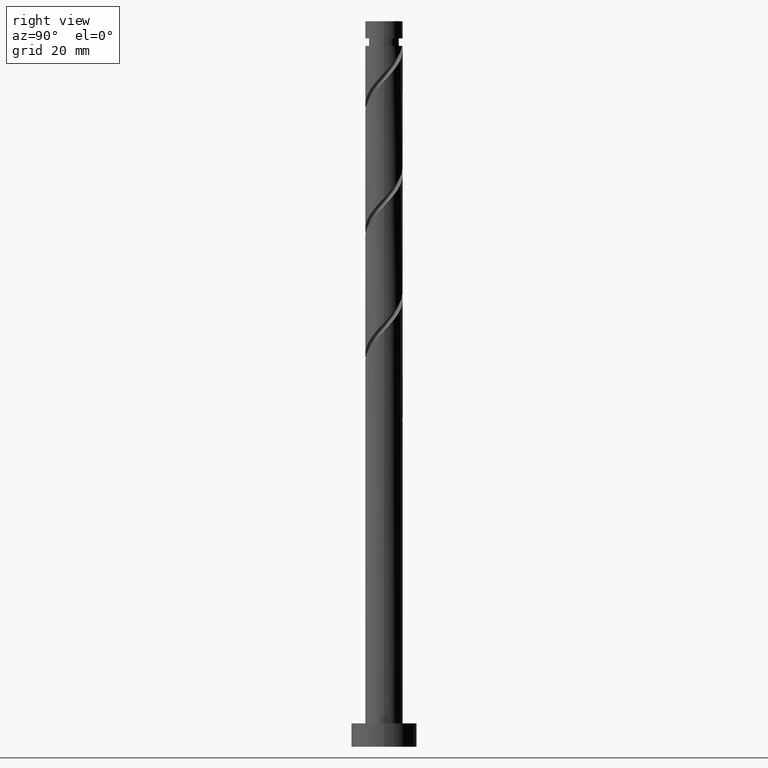
[diagram: clean part render]
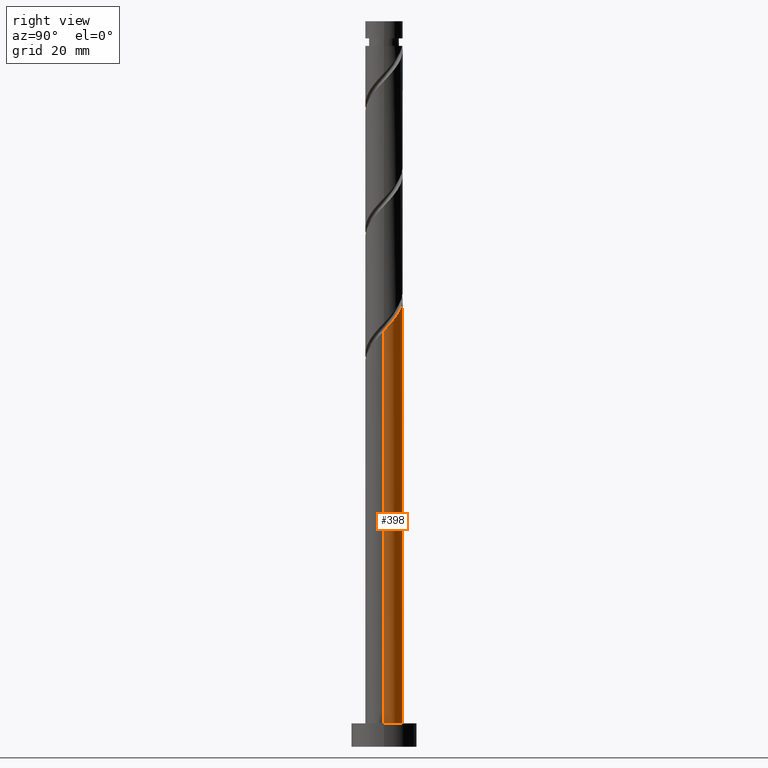
[diagram: same view with one face highlighted and labeled with its STEP entity id]
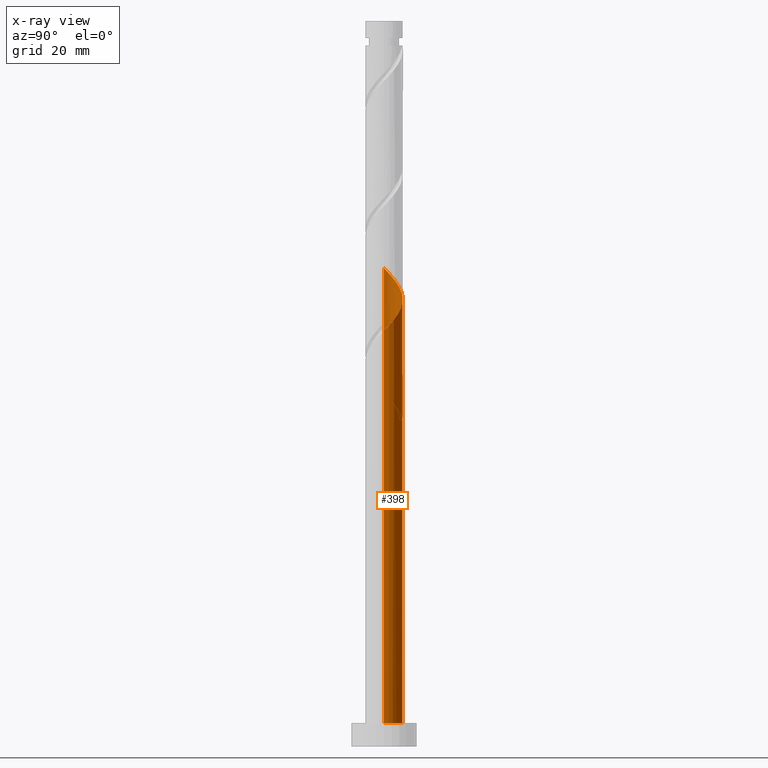
[diagram: x-ray of the same camera — body ghosted, the highlighted face saturated]
A machine part, right view. The second image highlights one B-rep face of the part: STEP entity #398.
The next image is the same camera in x-ray: the body ghosted, the highlighted face saturated — about 0% of this face is hidden behind the body in this view.
In plain terms, the highlighted cylindrical surface (edge-blend (fillet) strip) has radius 4 mm, axis along (-0, -0, -1).
Its self-contained STEP definition (entity closure, byte-faithful):
#28 = CARTESIAN_POINT ( 'NONE',  ( -4.000000000000005329, -2.752055009443334096E-15, 75.55009455226698378 ) ) ;
#35 = ORIENTED_EDGE ( 'NONE', *, *, #1606, .F. ) ;
#130 = CARTESIAN_POINT ( 'NONE',  ( -3.896423597087605994, 0.9043689247530175557, 101.2480338800527022 ) ) ;
#144 = VERTEX_POINT ( 'NONE', #28 ) ;
#156 = DIRECTION ( 'NONE',  ( 0.000000000000000000, 0.000000000000000000, 1.000000000000000000 ) ) ;
#202 = VERTEX_POINT ( 'NONE', #797 ) ;
#228 = CARTESIAN_POINT ( 'NONE',  ( -3.993381233129879693, 0.2300137536889541867, 77.00560963762848132 ) ) ;
#230 = VERTEX_POINT ( 'NONE', #681 ) ;
#233 = CARTESIAN_POINT ( 'NONE',  ( -4.000000000000005329, -2.752055009443334096E-15, 102.2167612189336268 ) ) ;
#242 = CARTESIAN_POINT ( 'NONE',  ( -3.896423597087605994, 0.9043689247530175557, 74.58136721338604502 ) ) ;
#245 = CARTESIAN_POINT ( 'NONE',  ( 0.2323790372250010838, 4.034446077002895592, 70.33894297096180992 ) ) ;
#247 = CARTESIAN_POINT ( 'NONE',  ( 0.9136687552802131851, 3.936491403624606811, 94.58136721338604502 ) ) ;
#254 = CARTESIAN_POINT ( 'NONE',  ( -2.376675911072817282, 3.268358422650721629, 98.21773084974965684 ) ) ;
#259 = CARTESIAN_POINT ( 'NONE',  ( 2.441275768804711976, 3.168623142730452091, 92.76318539520421780 ) ) ;
#260 = CARTESIAN_POINT ( 'NONE',  ( 0.000000000000000000, 0.000000000000000000, 69.73288236490121506 ) ) ;
#279 = EDGE_CURVE ( 'NONE', #202, #1111, #1131, .T. ) ;
#339 = CARTESIAN_POINT ( 'NONE',  ( -4.000000000000000000, 0.000000000000000000, 155.0000000000000000 ) ) ;
#349 = CARTESIAN_POINT ( 'NONE',  ( 3.960310248029106805, 0.8041752946599101115, 89.73288236490120084 ) ) ;
#354 = CARTESIAN_POINT ( 'NONE',  ( -3.235091246491823558, 2.352484777181774511, 74.58136721338605923 ) ) ;
#360 = DIRECTION ( 'NONE',  ( -0.000000000000000000, -0.000000000000000000, -1.000000000000000000 ) ) ;
#362 = CARTESIAN_POINT ( 'NONE',  ( -0.9136687552802111867, 3.936491403624602814, 71.55106418308302807 ) ) ;
#364 = CARTESIAN_POINT ( 'NONE',  ( 1.985696539029936369, 3.519625607940460643, 93.36924600126485529 ) ) ;
#377 = CARTESIAN_POINT ( 'NONE',  ( 3.573327494404170412, 1.887348876843108370, 90.94500357702240478 ) ) ;
#379 = CARTESIAN_POINT ( 'NONE',  ( 4.000000000000000000, 4.898587196589412829E-16, 155.0000000000000000 ) ) ;
#384 =( BOUNDED_CURVE ( )  B_SPLINE_CURVE ( 2, ( #461, #887, #228, #625, #986, #738, #354, #1135, #1638, #497, #1513, #362, #1390, #245, #756 ),
 .UNSPECIFIED., .F., .T. ) 
 B_SPLINE_CURVE_WITH_KNOTS ( ( 3, 2, 2, 2, 2, 2, 2, 3 ),
 ( 0.9295252162417513286, 0.9318181818181817677, 0.9431818181818182323, 0.9545454545454545858, 0.9659090909090909394, 0.9772727272727272929, 0.9886363636363636465, 1.000000000000000000 ),
 .UNSPECIFIED. ) 
 CURVE ( )  GEOMETRIC_REPRESENTATION_ITEM ( )  RATIONAL_B_SPLINE_CURVE ( ( 0.9061101570135567940, 0.9072237824201390133, 0.9090909090909164991, 0.8998376744372188485, 0.9090909090909164991, 0.8998376744372188485, 0.9090909090909164991, 0.8998376744372188485, 0.9090909090909164991, 0.8998376744372188485, 0.9090909090909164991, 0.8998376744372188485, 0.9090909090909164991, 0.8998376744372188485, 0.9090909090909164991 ) ) 
 REPRESENTATION_ITEM ( '' )  );
#390 = AXIS2_PLACEMENT_3D ( 'NONE', #260, #1042, #773 ) ;
#395 = EDGE_CURVE ( 'NONE', #591, #401, #1281, .T. ) ;
#398 = ADVANCED_FACE ( 'NONE', ( #569 ), #584, .T. ) ;
#401 = VERTEX_POINT ( 'NONE', #1448 ) ;
#435 = CARTESIAN_POINT ( 'NONE',  ( -1.359600862145593503, 3.805553922997108707, 70.33894297096180992 ) ) ;
#461 = CARTESIAN_POINT ( 'NONE',  ( -4.000000000000000888, 3.769118817281110637E-15, 77.24900351086877492 ) ) ;
#477 = CARTESIAN_POINT ( 'NONE',  ( -4.000000000000005329, 0.4581157095404964630, 101.7308012659623273 ) ) ;
#482 = VERTEX_POINT ( 'NONE', #1568 ) ;
#484 = DIRECTION ( 'NONE',  ( -0.000000000000000000, -0.000000000000000000, -1.000000000000000000 ) ) ;
#497 = CARTESIAN_POINT ( 'NONE',  ( -1.985696539029934815, 3.519625607940455758, 72.76318539520421780 ) ) ;
#500 = CARTESIAN_POINT ( 'NONE',  ( 3.993381233129885466, 0.2300137536889530487, 89.12682175884059177 ) ) ;
#505 = CARTESIAN_POINT ( 'NONE',  ( -3.201206812320813277, 2.466379960577148367, 72.76318539520423201 ) ) ;
#512 =( BOUNDED_CURVE ( )  B_SPLINE_CURVE ( 2, ( #1581, #435, #961, #515, #1643, #505, #1529, #622, #242, #1274, #1027 ),
 .UNSPECIFIED., .F., .T. ) 
 B_SPLINE_CURVE_WITH_KNOTS ( ( 3, 2, 2, 2, 2, 3 ),
 ( 0.000000000000000000, 0.01136363636363635181, 0.02272727272727270362, 0.03409090909090906063, 0.04545454545454540723, 0.05452521624175123843 ),
 .UNSPECIFIED. ) 
 CURVE ( )  GEOMETRIC_REPRESENTATION_ITEM ( )  RATIONAL_B_SPLINE_CURVE ( ( 0.9090909090909219392, 0.8998376744372241776, 0.9090909090909219392, 0.8998376744372241776, 0.9090909090909219392, 0.8998376744372241776, 0.9090909090909219392, 0.8998376744372241776, 0.9090909090909219392, 0.9017048011080017744, 0.9061101570135622341 ) ) 
 REPRESENTATION_ITEM ( '' )  );
#514 = VECTOR ( 'NONE', #360, 1000.000000000000000 ) ;
#515 = CARTESIAN_POINT ( 'NONE',  ( -2.376675911072817282, 3.268358422650721629, 71.55106418308299965 ) ) ;
#534 = ORIENTED_EDGE ( 'NONE', *, *, #1295, .F. ) ;
#569 = FACE_OUTER_BOUND ( 'NONE', #1631, .T. ) ;
#584 = CYLINDRICAL_SURFACE ( 'NONE', #1260, 4.000000000000000000 ) ;
#591 = VERTEX_POINT ( 'NONE', #1373 ) ;
#595 = ORIENTED_EDGE ( 'NONE', *, *, #279, .T. ) ;
#622 = CARTESIAN_POINT ( 'NONE',  ( -3.766394975944548307, 1.464590062224031541, 73.97530660732545016 ) ) ;
#625 = CARTESIAN_POINT ( 'NONE',  ( -3.960310248029102365, 0.8041752946599105556, 76.39954903156788646 ) ) ;
#629 = CARTESIAN_POINT ( 'NONE',  ( 4.000000000000005329, 2.557616340297881178E-15, 88.88342788560029817 ) ) ;
#641 = AXIS2_PLACEMENT_3D ( 'NONE', #790, #156, #1078 ) ;
#648 = VECTOR ( 'NONE', #484, 1000.000000000000000 ) ;
#677 = VERTEX_POINT ( 'NONE', #1248 ) ;
#681 = CARTESIAN_POINT ( 'NONE',  ( 4.000000000000005329, 2.557616340297881178E-15, 88.88342788560029817 ) ) ;
#738 = CARTESIAN_POINT ( 'NONE',  ( -3.573327494404164639, 1.887348876843108147, 75.18742781944666831 ) ) ;
#746 = ORIENTED_EDGE ( 'NONE', *, *, #1398, .F. ) ;
#752 = EDGE_CURVE ( 'NONE', #144, #401, #1629, .T. ) ;
#756 = CARTESIAN_POINT ( 'NONE',  ( 0.7959899496852974599, 3.919999999999999929, 69.73288236490120084 ) ) ;
#757 = EDGE_CURVE ( 'NONE', #677, #1111, #384, .T. ) ;
#760 = CARTESIAN_POINT ( 'NONE',  ( 0.3406448590276063282, 3.985468740313755642, 95.18742781944665410 ) ) ;
#772 = CARTESIAN_POINT ( 'NONE',  ( -3.201206812320813277, 2.466379960577148367, 99.42985206187090341 ) ) ;
#773 = DIRECTION ( 'NONE',  ( -1.000000000000000000, 0.000000000000000000, 0.000000000000000000 ) ) ;
#790 = CARTESIAN_POINT ( 'NONE',  ( 0.000000000000000000, 0.000000000000000000, 5.000000000000000000 ) ) ;
#797 = CARTESIAN_POINT ( 'NONE',  ( -0.7959899496852960166, 3.920000000000004370, 69.73288236490120084 ) ) ;
#887 = CARTESIAN_POINT ( 'NONE',  ( -4.000000000000000888, 0.1151021060952919922, 77.12690550615054974 ) ) ;
#897 = LINE ( 'NONE', #379, #514 ) ;
#904 = CARTESIAN_POINT ( 'NONE',  ( -0.7959899496852962386, 3.920000000000005702, 96.39954903156785804 ) ) ;
#958 = DIRECTION ( 'NONE',  ( -0.000000000000000000, -0.000000000000000000, -1.000000000000000000 ) ) ;
#961 = CARTESIAN_POINT ( 'NONE',  ( -1.868138386609205837, 3.536956172823915612, 70.94500357702241899 ) ) ;
#963 =( BOUNDED_CURVE ( )  B_SPLINE_CURVE ( 2, ( #629, #1139, #500, #349, #1143, #377, #1015, #1379, #259, #364, #1528, #247, #760, #1648, #904, #1019, #1520, #254, #1408, #772, #1121, #1624, #130, #477, #233 ),
 .UNSPECIFIED., .F., .T. ) 
 B_SPLINE_CURVE_WITH_KNOTS ( ( 3, 2, 2, 2, 2, 2, 2, 2, 2, 2, 2, 2, 3 ),
 ( 0.1795252162417513286, 0.1818181818181817677, 0.1931818181818182323, 0.2045454545454545858, 0.2159090909090909394, 0.2272727272727272929, 0.2386363636363636465, 0.2500000000000000000, 0.2613636363636363535, 0.2727272727272727071, 0.2840909090909090606, 0.2954545454545454142, 0.3045252162417512176 ),
 .UNSPECIFIED. ) 
 CURVE ( )  GEOMETRIC_REPRESENTATION_ITEM ( )  RATIONAL_B_SPLINE_CURVE ( ( 0.9061101570135623451, 0.9072237824201444534, 0.9090909090909219392, 0.8998376744372241776, 0.9090909090909219392, 0.8998376744372241776, 0.9090909090909219392, 0.8998376744372241776, 0.9090909090909219392, 0.8998376744372241776, 0.9090909090909219392, 0.8998376744372241776, 0.9090909090909219392, 0.8998376744372241776, 0.9090909090909219392, 0.8998376744372241776, 0.9090909090909219392, 0.8998376744372241776, 0.9090909090909219392, 0.8998376744372241776, 0.9090909090909219392, 0.8998376744372241776, 0.9090909090909219392, 0.9017048011080017744, 0.9061101570135621230 ) ) 
 REPRESENTATION_ITEM ( '' )  );
#974 = DIRECTION ( 'NONE',  ( -1.000000000000000000, 0.000000000000000000, 0.000000000000000000 ) ) ;
#986 = CARTESIAN_POINT ( 'NONE',  ( -3.766818871216632836, 1.345762085751508463, 75.79348842550723475 ) ) ;
#1015 = CARTESIAN_POINT ( 'NONE',  ( 3.235091246491828887, 2.352484777181775399, 91.55106418308302807 ) ) ;
#1019 = CARTESIAN_POINT ( 'NONE',  ( -1.359600862145593503, 3.805553922997108707, 97.00560963762843869 ) ) ;
#1027 = CARTESIAN_POINT ( 'NONE',  ( -4.000000000000005329, -2.752055009443334096E-15, 75.55009455226698378 ) ) ;
#1042 = DIRECTION ( 'NONE',  ( 0.000000000000000000, -0.000000000000000000, -1.000000000000000000 ) ) ;
#1078 = DIRECTION ( 'NONE',  ( 1.000000000000000000, 0.000000000000000000, 0.000000000000000000 ) ) ;
#1105 = ORIENTED_EDGE ( 'NONE', *, *, #1623, .T. ) ;
#1111 = VERTEX_POINT ( 'NONE', #1600 ) ;
#1121 = CARTESIAN_POINT ( 'NONE',  ( -3.483800894132681236, 1.965485011400590398, 100.0359126679315409 ) ) ;
#1131 = CIRCLE ( 'NONE', #390, 4.000000000000000000 ) ;
#1135 = CARTESIAN_POINT ( 'NONE',  ( -2.896854998579482920, 2.817620677520439987, 73.97530660732543595 ) ) ;
#1139 = CARTESIAN_POINT ( 'NONE',  ( 4.000000000000005329, 0.1151021060952908542, 89.00552589031852335 ) ) ;
#1143 = CARTESIAN_POINT ( 'NONE',  ( 3.766818871216639053, 1.345762085751509574, 90.33894297096180992 ) ) ;
#1207 = CARTESIAN_POINT ( 'NONE',  ( 0.000000000000000000, 0.000000000000000000, 155.0000000000000000 ) ) ;
#1248 = CARTESIAN_POINT ( 'NONE',  ( -4.000000000000000888, 3.769118817281110637E-15, 77.24900351086876071 ) ) ;
#1260 = AXIS2_PLACEMENT_3D ( 'NONE', #1207, #958, #974 ) ;
#1274 = CARTESIAN_POINT ( 'NONE',  ( -4.000000000000005329, 0.4581157095404953528, 75.06413459929565590 ) ) ;
#1281 = CIRCLE ( 'NONE', #641, 4.000000000000000000 ) ;
#1295 = EDGE_CURVE ( 'NONE', #230, #482, #963, .T. ) ;
#1312 = ORIENTED_EDGE ( 'NONE', *, *, #757, .F. ) ;
#1336 = DIRECTION ( 'NONE',  ( -0.000000000000000000, -0.000000000000000000, -1.000000000000000000 ) ) ;
#1371 = VECTOR ( 'NONE', #1336, 1000.000000000000000 ) ;
#1373 = CARTESIAN_POINT ( 'NONE',  ( 4.000000000000000000, 4.898587196589412829E-16, 5.000000000000000000 ) ) ;
#1379 = CARTESIAN_POINT ( 'NONE',  ( 2.896854998579489138, 2.817620677520440875, 92.15712478914362293 ) ) ;
#1390 = CARTESIAN_POINT ( 'NONE',  ( -0.3406448590276049404, 3.985468740313750313, 70.94500357702240478 ) ) ;
#1398 = EDGE_CURVE ( 'NONE', #482, #677, #1459, .T. ) ;
#1408 = CARTESIAN_POINT ( 'NONE',  ( -2.788941361696814614, 2.867369191613936330, 98.82379145581028013 ) ) ;
#1448 = CARTESIAN_POINT ( 'NONE',  ( -4.000000000000000000, 0.000000000000000000, 5.000000000000000000 ) ) ;
#1459 = LINE ( 'NONE', #339, #1371 ) ;
#1472 = ORIENTED_EDGE ( 'NONE', *, *, #752, .F. ) ;
#1501 = ORIENTED_EDGE ( 'NONE', *, *, #395, .T. ) ;
#1504 = CARTESIAN_POINT ( 'NONE',  ( -4.000000000000000000, 0.000000000000000000, 155.0000000000000000 ) ) ;
#1513 = CARTESIAN_POINT ( 'NONE',  ( -1.449682647155072557, 3.728058505782528620, 72.15712478914359451 ) ) ;
#1520 = CARTESIAN_POINT ( 'NONE',  ( -1.868138386609205837, 3.536956172823915612, 97.61167024368906198 ) ) ;
#1528 = CARTESIAN_POINT ( 'NONE',  ( 1.449682647155074333, 3.728058505782534393, 93.97530660732543595 ) ) ;
#1529 = CARTESIAN_POINT ( 'NONE',  ( -3.483800894132681236, 1.965485011400590398, 73.36924600126485529 ) ) ;
#1568 = CARTESIAN_POINT ( 'NONE',  ( -4.000000000000005329, -2.752055009443334096E-15, 102.2167612189336268 ) ) ;
#1581 = CARTESIAN_POINT ( 'NONE',  ( -0.7959899496852960166, 3.920000000000004370, 69.73288236490120084 ) ) ;
#1600 = CARTESIAN_POINT ( 'NONE',  ( 0.7959899496852974599, 3.919999999999999929, 69.73288236490120084 ) ) ;
#1606 = EDGE_CURVE ( 'NONE', #202, #144, #512, .T. ) ;
#1623 = EDGE_CURVE ( 'NONE', #230, #591, #897, .T. ) ;
#1624 = CARTESIAN_POINT ( 'NONE',  ( -3.766394975944548307, 1.464590062224031541, 100.6419732739921074 ) ) ;
#1629 = LINE ( 'NONE', #1504, #648 ) ;
#1631 = EDGE_LOOP ( 'NONE', ( #534, #1105, #1501, #1472, #35, #595, #1312, #746 ) ) ;
#1638 = CARTESIAN_POINT ( 'NONE',  ( -2.441275768804708868, 3.168623142730448095, 73.36924600126484108 ) ) ;
#1643 = CARTESIAN_POINT ( 'NONE',  ( -2.788941361696814614, 2.867369191613936330, 72.15712478914362293 ) ) ;
#1648 = CARTESIAN_POINT ( 'NONE',  ( -0.2323790372250002234, 4.034446077002900921, 95.79348842550724896 ) ) ;